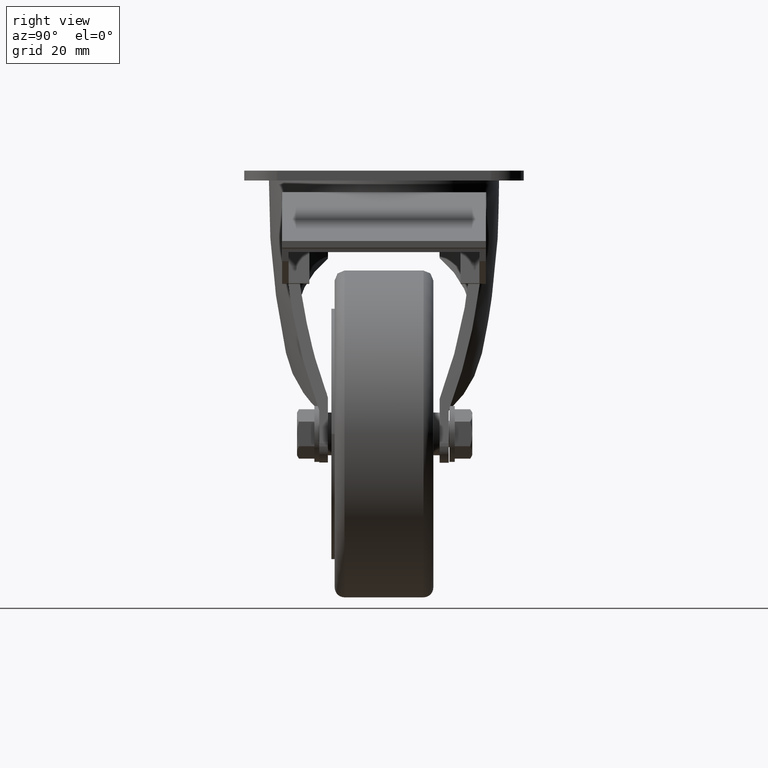
[diagram: clean part render]
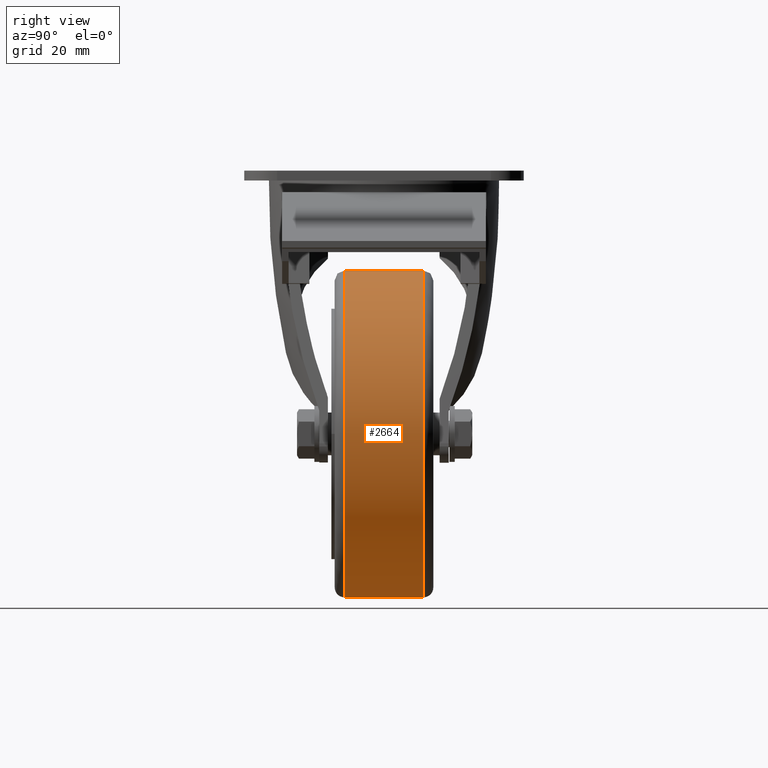
[diagram: same view with one face highlighted and labeled with its STEP entity id]
A machine part, right view. The second image highlights one B-rep face of the part: STEP entity #2664.
In plain terms, the highlighted cylindrical surface (bore or boss wall) has radius 49.7 mm, axis along (0, -1, 0).
Its self-contained STEP definition (entity closure, byte-faithful):
#2614=CARTESIAN_POINT('',(-7.500010389968963,14.999999999940471,-80.075077357231692));
#2615=DIRECTION('',(3.053113E-016,-1.0,6.123234E-017));
#2616=DIRECTION('',(-6.938894E-018,-6.123234E-017,-1.0));
#2617=AXIS2_PLACEMENT_3D('',#2614,#2615,#2616);
#2618=CYLINDRICAL_SURFACE('',#2617,49.700038575901381);
#2619=CARTESIAN_POINT('',(-7.500010389968963,11.999999999940469,-129.775115933133070));
#2620=VERTEX_POINT('',#2619);
#2621=CARTESIAN_POINT('',(-7.500010389969021,11.999999999940474,-30.375038781330311));
#2622=VERTEX_POINT('',#2621);
#2623=CARTESIAN_POINT('',(-7.500010389969022,11.999999999940471,-80.075077357231692));
#2624=DIRECTION('',(3.053113E-016,-1.0,6.123234E-017));
#2625=DIRECTION('',(-6.938894E-018,-6.123234E-017,-1.0));
#2626=AXIS2_PLACEMENT_3D('',#2623,#2624,#2625);
#2627=CIRCLE('',#2626,49.700038575901381);
#2628=EDGE_CURVE('',#2620,#2622,#2627,.T.);
#2629=ORIENTED_EDGE('',*,*,#2628,.T.);
#2630=CARTESIAN_POINT('',(-7.500010389969022,11.999999999940471,-80.075077357231692));
#2631=DIRECTION('',(3.053113E-016,-1.0,6.123234E-017));
#2632=DIRECTION('',(-6.938894E-018,-6.123234E-017,-1.0));
#2633=AXIS2_PLACEMENT_3D('',#2630,#2631,#2632);
#2634=CIRCLE('',#2633,49.700038575901381);
#2635=EDGE_CURVE('',#2622,#2620,#2634,.T.);
#2636=ORIENTED_EDGE('',*,*,#2635,.T.);
#2637=CARTESIAN_POINT('',(-7.500010389968963,-11.999999999940274,-129.775115933133070));
#2638=VERTEX_POINT('',#2637);
#2639=CARTESIAN_POINT('',(-7.500010389968963,11.999999999940471,-129.775115933133070));
#2640=DIRECTION('',(0.0,-1.0,0.0));
#2641=VECTOR('',#2640,23.999999999880679);
#2642=LINE('',#2639,#2641);
#2643=EDGE_CURVE('',#2620,#2638,#2642,.T.);
#2644=ORIENTED_EDGE('',*,*,#2643,.T.);
#2645=CARTESIAN_POINT('',(-7.500010389968964,-11.999999999940268,-30.375038781330311));
#2646=VERTEX_POINT('',#2645);
#2647=CARTESIAN_POINT('',(-7.500010389968965,-11.999999999940272,-80.075077357231692));
#2648=DIRECTION('',(3.053113E-016,-1.0,6.123234E-017));
#2649=DIRECTION('',(-6.938894E-018,-6.123234E-017,-1.0));
#2650=AXIS2_PLACEMENT_3D('',#2647,#2648,#2649);
#2651=CIRCLE('',#2650,49.700038575901381);
#2652=EDGE_CURVE('',#2646,#2638,#2651,.T.);
#2653=ORIENTED_EDGE('',*,*,#2652,.F.);
#2654=CARTESIAN_POINT('',(-7.500010389968965,-11.999999999940272,-80.075077357231692));
#2655=DIRECTION('',(3.053113E-016,-1.0,6.123234E-017));
#2656=DIRECTION('',(-6.938894E-018,-6.123234E-017,-1.0));
#2657=AXIS2_PLACEMENT_3D('',#2654,#2655,#2656);
#2658=CIRCLE('',#2657,49.700038575901381);
#2659=EDGE_CURVE('',#2638,#2646,#2658,.T.);
#2660=ORIENTED_EDGE('',*,*,#2659,.F.);
#2661=ORIENTED_EDGE('',*,*,#2643,.F.);
#2662=EDGE_LOOP('',(#2629,#2636,#2644,#2653,#2660,#2661));
#2663=FACE_OUTER_BOUND('',#2662,.T.);
#2664=ADVANCED_FACE('',(#2663),#2618,.T.);